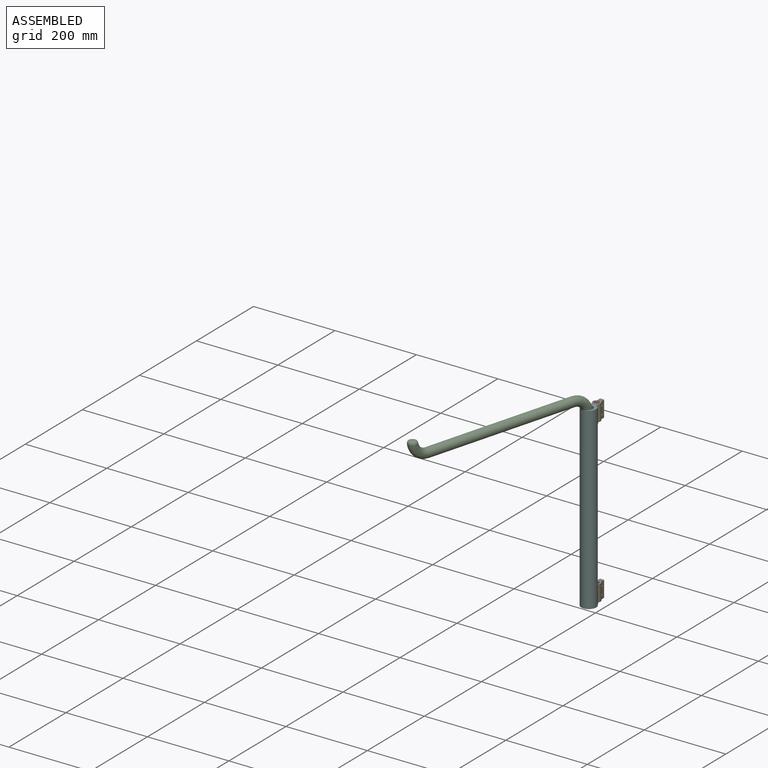
[diagram: assembled view]
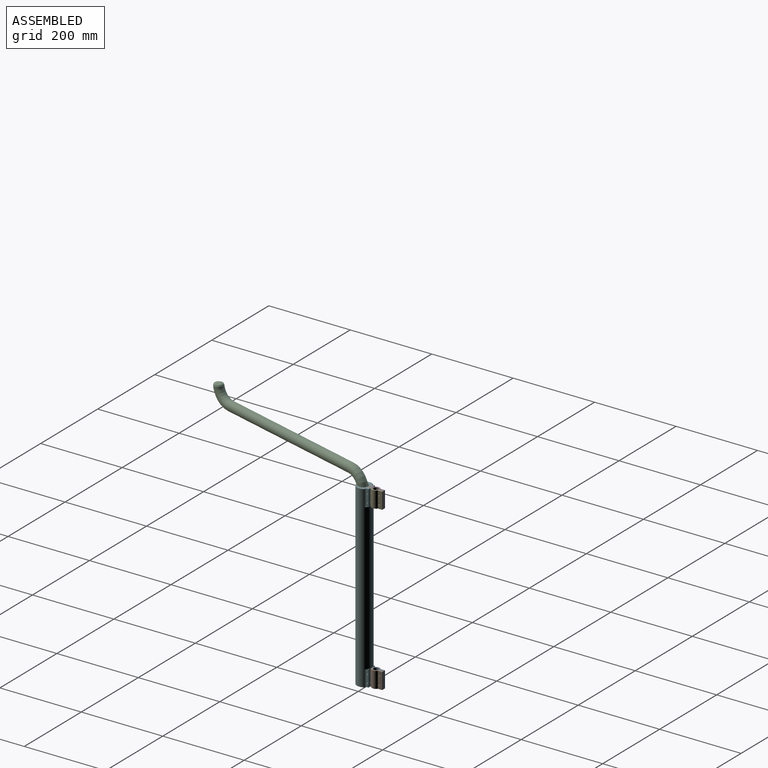
[diagram: assembled view, second angle]
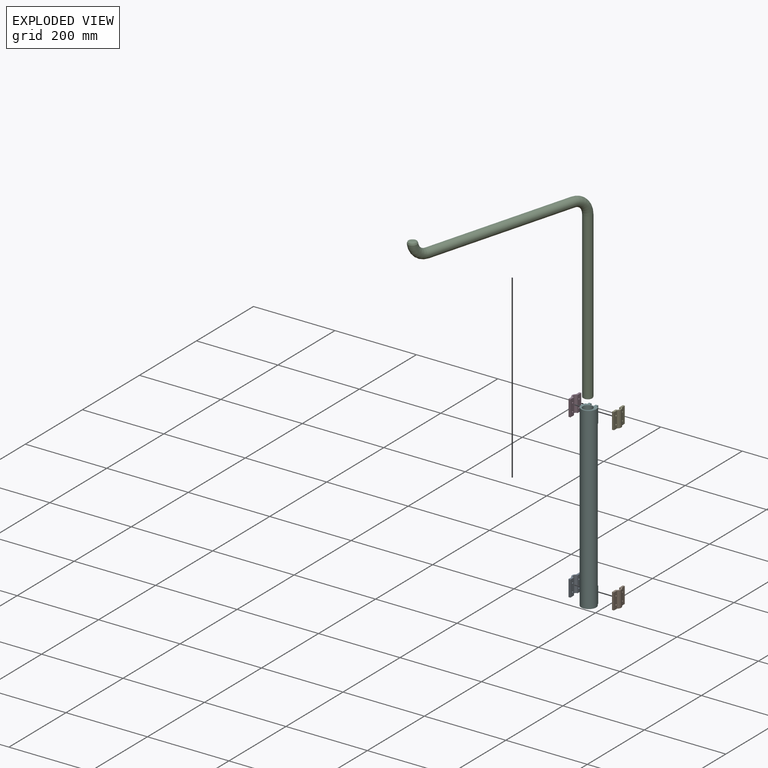
[diagram: exploded view]
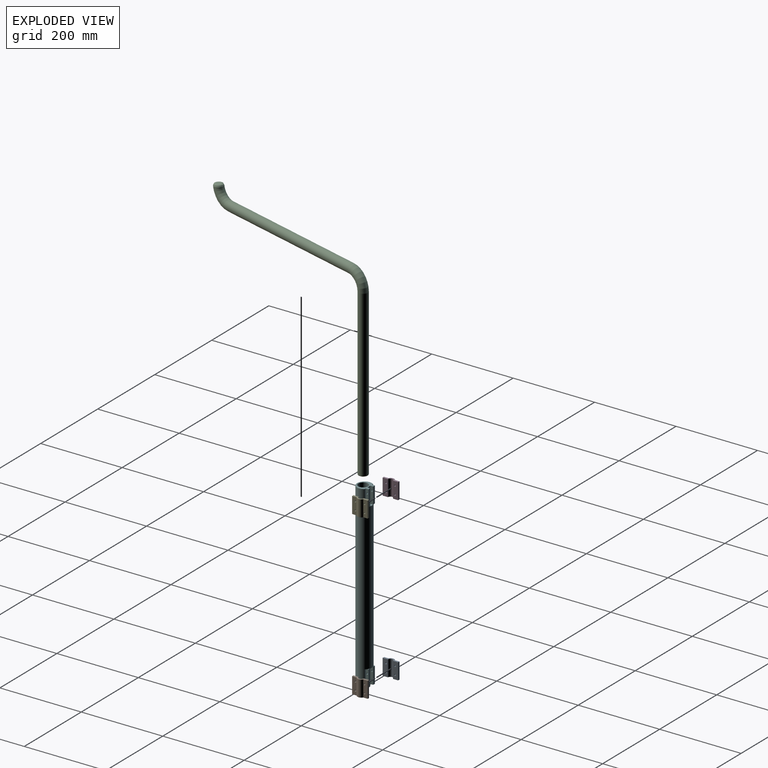
[diagram: exploded view, second angle]
ASSEMBLY  parts=6 mates=5
PART A: 14 faces, bbox 9.3x38.1x40 mm
  f0: plane 40x10.94mm, normal (-1,0,0), area 412.6mm2, adj f2,f3,f8,f9,f12,f13
  f1: plane 40x12.71mm, normal (1,0,0), area 483.1mm2, adj f2,f7,f8,f9,f12,f13
  f2: plane 40x4.75mm, normal (0,1,0), area 190mm2, adj f0,f1,f8,f9
  f3: cylinder r=9.53mm len=40mm, axis (0,0,-1), area 775.8mm2, adj f0,f4,f8,f9
  f4: plane 40x10.94mm, normal (-1,0,0), area 412.6mm2, adj f3,f5,f8,f9,f10,f11
  f5: plane 40x4.75mm, normal (0,-1,0), area 190mm2, adj f4,f6,f8,f9
  f6: plane 40x12.71mm, normal (1,0,0), area 483.1mm2, adj f5,f7,f8,f9,f10,f11
  f7: cylinder r=6.35mm len=40mm, axis (0,0,-1), area 778mm2, adj f1,f6,f8,f9
  f8: plane 38.1x9.28mm, normal (0,0,1), area 172.6mm2, adj f0,f1,f2,f3,f4,f5,f6,f7
  f9: plane 38.1x9.28mm, normal (0,0,-1), area 172.6mm2, adj f0,f1,f2,f3,f4,f5,f6,f7
  f10: cylinder r=2mm len=4.75mm, axis (-1,0,0), area 59.7mm2, adj f4,f6
  f11: cylinder r=2mm len=4.75mm, axis (-1,0,0), area 59.7mm2, adj f4,f6
  f12: cylinder r=2mm len=4.75mm, axis (-1,0,0), area 59.7mm2, adj f0,f1
  f13: cylinder r=2mm len=4.75mm, axis (-1,0,0), area 59.7mm2, adj f0,f1
PART B: 14 faces, bbox 9.3x38.1x40 mm
  f0: plane 40x10.94mm, normal (1,0,0), area 412.6mm2, adj f3,f4,f8,f9,f12,f13
  f1: plane 40x12.71mm, normal (-1,0,0), area 483.1mm2, adj f4,f5,f8,f9,f12,f13
  f2: plane 40x10.94mm, normal (1,0,0), area 412.6mm2, adj f3,f7,f8,f9,f10,f11
  f3: cylinder r=9.53mm len=40mm, axis (0,0,-1), area 775.8mm2, adj f0,f2,f8,f9
  f4: plane 40x4.75mm, normal (0,1,0), area 190mm2, adj f0,f1,f8,f9
  f5: cylinder r=6.35mm len=40mm, axis (0,0,-1), area 778mm2, adj f1,f6,f8,f9
  f6: plane 40x12.71mm, normal (-1,0,0), area 483.1mm2, adj f5,f7,f8,f9,f10,f11
  f7: plane 40x4.75mm, normal (0,-1,0), area 190mm2, adj f2,f6,f8,f9
  f8: plane 38.1x9.28mm, normal (0,0,1), area 172.6mm2, adj f0,f1,f2,f3,f4,f5,f6,f7
  f9: plane 38.1x9.28mm, normal (0,0,-1), area 172.6mm2, adj f0,f1,f2,f3,f4,f5,f6,f7
  f10: cylinder r=2mm len=4.75mm, axis (-1,0,0), area 59.7mm2, adj f2,f6
  f11: cylinder r=2mm len=4.75mm, axis (-1,0,0), area 59.7mm2, adj f2,f6
  f12: cylinder r=2mm len=4.75mm, axis (-1,0,0), area 59.7mm2, adj f0,f1
  f13: cylinder r=2mm len=4.75mm, axis (-1,0,0), area 59.7mm2, adj f0,f1
PART C: 8 faces, bbox 24.8x487.9x482.6 mm
  f0: plane 18.88x18.88mm, normal (0,0,-1), area 280mm2, adj f7
  f1: plane 13.01x12.89mm, normal (0,0,1), area 131.4mm2, adj f6
  f2: cylinder r=11.44mm len=404.4mm, axis (0,0,1), area 29069.8mm2, adj f3,f7
  f3: torus R=38.1mm, axis (-1,0,0), area 4302.1mm2, adj f2,f4
  f4: cylinder r=11.44mm len=381mm, axis (0,1,0), area 27387.7mm2, adj f3,f5
  f5: torus R=38.1mm, axis (1,0,0), area 3945.2mm2, adj f4,f6
  f6: bspline ~23.56x22.93mm, area 472.2mm2, adj f1,f5
  f7: torus R=9.44mm, axis (0,0,1), area 211.5mm2, adj f0,f2
PART D: same geometry as A
PART E: same geometry as B
PART F: 41 faces, bbox 36.6x36.6x440 mm
  f0: plane 36.58x35.88mm, normal (0,0,-1), area 980.4mm2, adj f1,f2,f5,f6,f7,f8,f9,f10
  f1: plane 40x6.8mm, normal (-1,0,0), area 246.9mm2, adj f0,f3,f5,f14,f15,f16,f17
  f2: plane 40x6.8mm, normal (1,0,0), area 246.9mm2, adj f0,f4,f7,f12,f13,f18,f19
  f3: plane 6.22x3.15mm, normal (0,0,1), area 8.2mm2, adj f1,f5,f6
  f4: plane 6.22x3.15mm, normal (0,0,1), area 8.2mm2, adj f2,f6,f7
  f5: plane 40x6.22mm, normal (0,1,0), area 248.7mm2, adj f0,f1,f3,f10
  f6: cylinder r=18.29mm len=440mm, axis (0,0,-1), area 47810.6mm2, adj f0,f3,f4,f11,f12,f13,f14,f15
  f7: plane 40x6.22mm, normal (0,1,0), area 248.7mm2, adj f0,f2,f4,f9
  f8: plane 40x10mm, normal (0,1,0), area 400mm2, adj f0,f9,f10,f11
  f9: plane 40x6.8mm, normal (-1,0,0), area 246.9mm2, adj f0,f7,f8,f11,f18,f19
  f10: plane 40x6.8mm, normal (1,0,0), area 246.9mm2, adj f0,f5,f8,f11,f16,f17
  f11: plane 10x7.5mm, normal (0,0,-1), area 72.7mm2, adj f6,f8,f9,f10
  f12: plane 40x3.55mm, normal (0,1,0), area 141.9mm2, adj f0,f2,f6,f13
  f13: plane 3.65x3.55mm, normal (0,0,-1), area 7.1mm2, adj f2,f6,f12
  f14: plane 40x3.55mm, normal (0,1,0), area 141.9mm2, adj f0,f1,f6,f15
  f15: plane 3.65x3.55mm, normal (0,0,-1), area 7.1mm2, adj f1,f6,f14
  f16: cylinder r=2mm len=6.22mm, axis (1,0,0), area 78.1mm2, adj f1,f10
  f17: cylinder r=2mm len=6.22mm, axis (1,0,0), area 78.1mm2, adj f1,f10
  f18: cylinder r=2mm len=6.22mm, axis (1,0,0), area 78.1mm2, adj f2,f9
  f19: cylinder r=2mm len=6.22mm, axis (1,0,0), area 78.1mm2, adj f2,f9
  f20: plane 36.58x35.88mm, normal (0,0,1), area 528mm2, adj f6,f21,f22,f25,f26,f27,f28,f29
  f21: plane 40x6.8mm, normal (-1,0,0), area 246.9mm2, adj f20,f23,f25,f33,f34,f35,f36
  f22: plane 40x6.8mm, normal (1,0,0), area 246.9mm2, adj f20,f24,f26,f31,f32,f37,f38
  f23: plane 6.22x3.15mm, normal (0,0,-1), area 8.2mm2, adj f6,f21,f25
  f24: plane 6.22x3.15mm, normal (0,0,-1), area 8.2mm2, adj f6,f22,f26
  f25: plane 40x6.22mm, normal (0,1,0), area 248.7mm2, adj f20,f21,f23,f29
  f26: plane 40x6.22mm, normal (0,1,0), area 248.7mm2, adj f20,f22,f24,f28
  f27: plane 40x10mm, normal (0,1,0), area 400mm2, adj f20,f28,f29,f30
  f28: plane 40x6.8mm, normal (-1,0,0), area 246.9mm2, adj f20,f26,f27,f30,f37,f38
  f29: plane 40x6.8mm, normal (1,0,0), area 246.9mm2, adj f20,f25,f27,f30,f35,f36
  f30: plane 10x7.5mm, normal (0,0,1), area 72.7mm2, adj f6,f27,f28,f29
  f31: plane 40x3.55mm, normal (0,1,0), area 141.9mm2, adj f6,f20,f22,f32
  f32: plane 3.65x3.55mm, normal (0,0,1), area 7.1mm2, adj f6,f22,f31
  f33: plane 40x3.55mm, normal (0,1,0), area 141.9mm2, adj f6,f20,f21,f34
  f34: plane 3.65x3.55mm, normal (0,0,1), area 7.1mm2, adj f6,f21,f33
  f35: cylinder r=2mm len=6.22mm, axis (1,0,0), area 78.1mm2, adj f21,f29
  f36: cylinder r=2mm len=6.22mm, axis (1,0,0), area 78.1mm2, adj f21,f29
  f37: cylinder r=2mm len=6.22mm, axis (1,0,0), area 78.1mm2, adj f22,f28
  f38: cylinder r=2mm len=6.22mm, axis (1,0,0), area 78.1mm2, adj f22,f28
  f39: cylinder r=12mm len=420mm, axis (0,0,1), area 31667.3mm2, adj f20,f40
  f40: plane 24x24mm, normal (0,0,1), area 452.4mm2, adj f39
PLACE A t=(-18.42,30.35,-152.66)mm
PLACE B t=(-18.42,30.35,-152.66)mm
PLACE C rot(axis=(0,0,1),164.5deg) t=(-65.41,-170.11,-152.66)mm
PLACE D t=(-18.42,30.35,247.34)mm
PLACE E t=(-18.42,30.35,247.34)mm
PLACE F t=(-18.42,41.95,-152.66)mm fixed
MATE fastened E.f2 <-> F.f28  axis (1,0,0) through (-13.42,16.63,267.34)mm
MATE fastened B.f2 <-> F.f9  axis (1,0,0) through (-13.42,16.63,-132.66)mm
MATE revolute C.f2 <-> F.f39  axis (0,0,-1) through (-18.42,-0.73,-132.66)mm
MATE fastened D.f4 <-> F.f29  axis (-1,0,0) through (-23.42,16.63,267.34)mm
MATE fastened A.f4 <-> F.f10  axis (-1,0,0) through (-23.42,16.63,-132.66)mm
